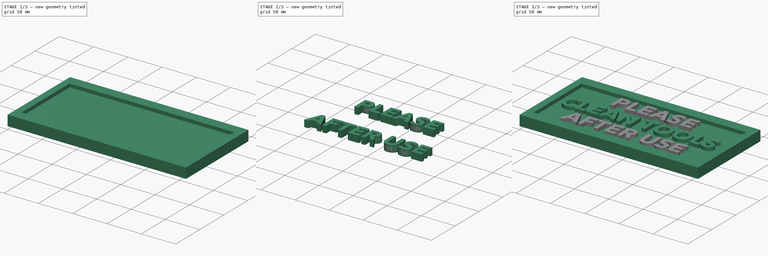
[diagram: build sequence overview — one tinted view per stage of 3, left to right]
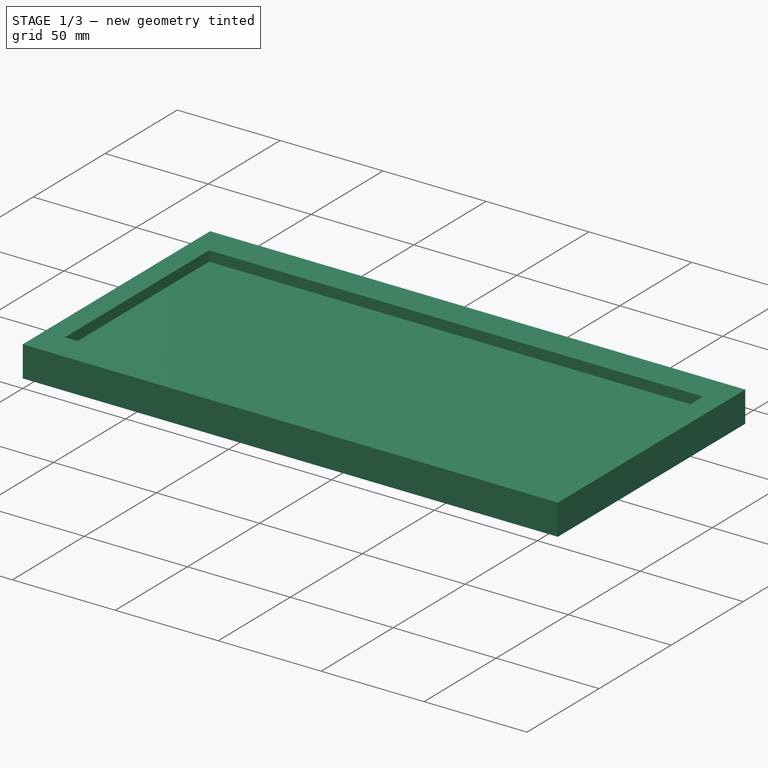
[diagram: stage 1 of 3 — iso view after this stage's code; geometry added in this stage tinted green]
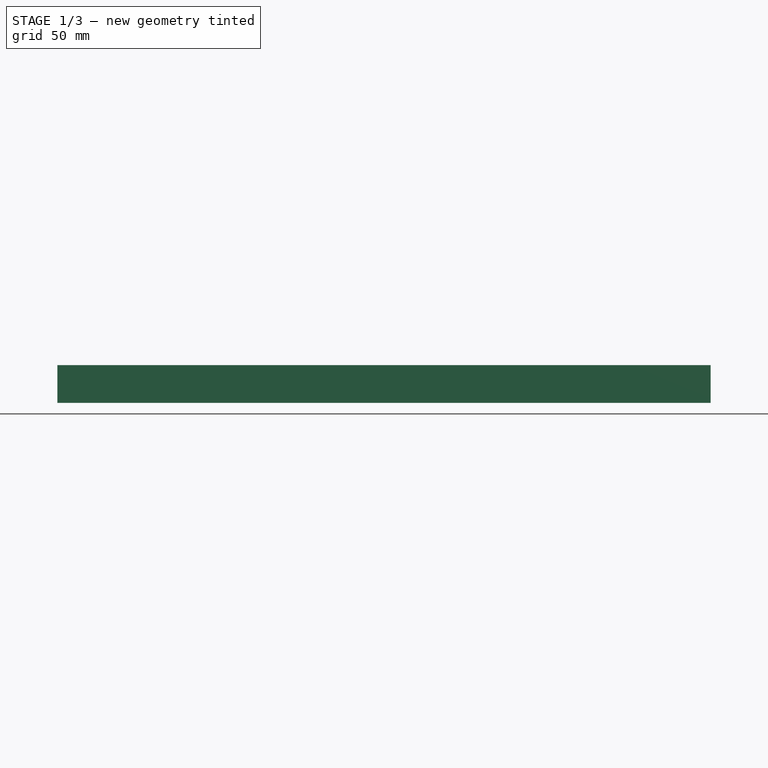
[diagram: stage 1 of 3 — front view after this stage's code; geometry added in this stage tinted green]
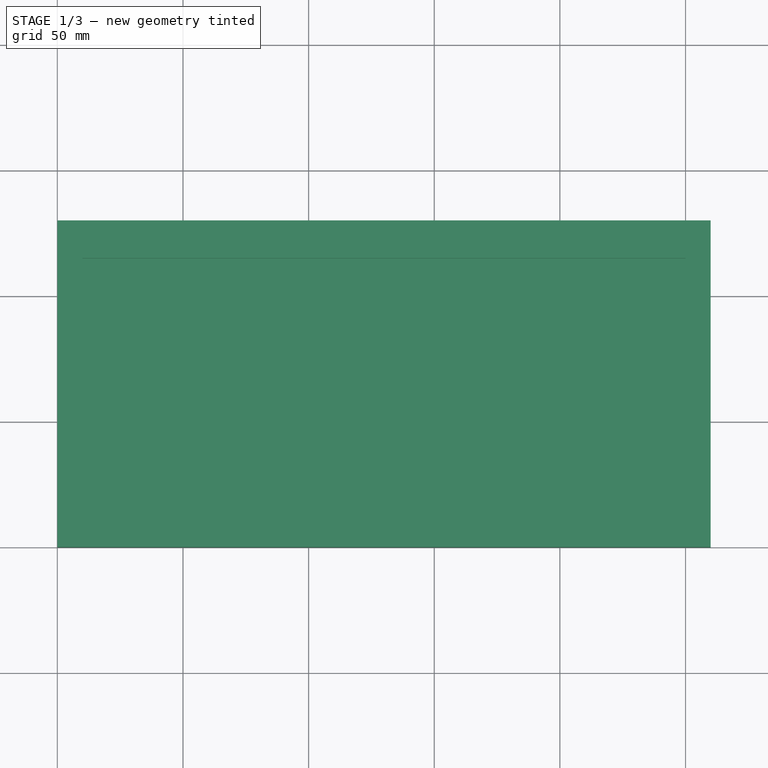
[diagram: stage 1 of 3 — top view after this stage's code; geometry added in this stage tinted green]
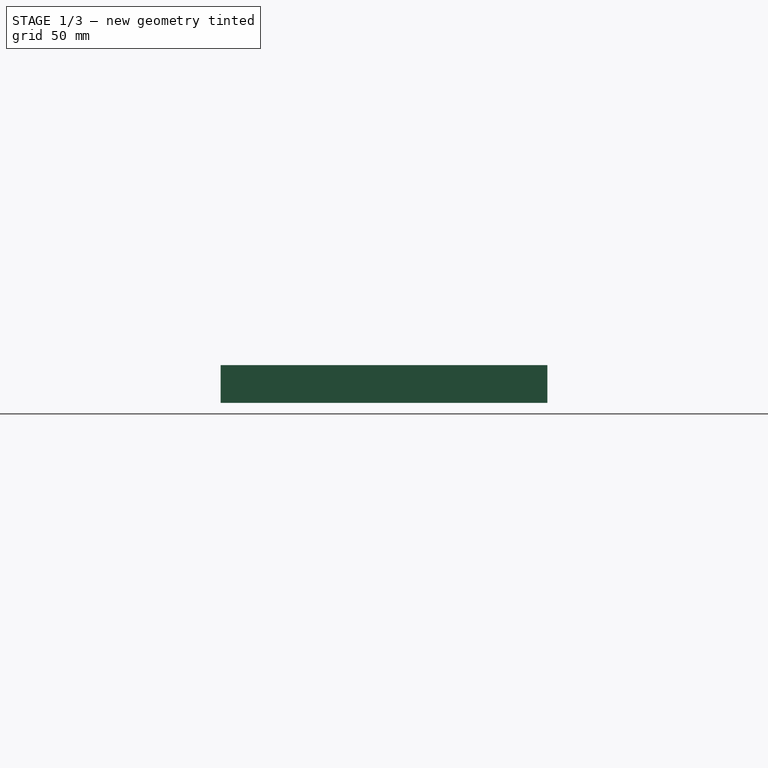
[diagram: stage 1 of 3 — right view after this stage's code; geometry added in this stage tinted green]
FCSTD DOCUMENT  (FreeCAD 0.22R36596 (Git))
Label: tools
License: All rights reserved
LicenseURL: http://en.wikipedia.org/wiki/All_rights_reserved
objects: Part::Part2DObjectPython×3, Part::Extrusion×3, Spreadsheet::Sheet×1, Sketcher::SketchObject×1, PartDesign::Pad×1, PartDesign::SubtractiveBox×1, PartDesign::Body×1, Part::MultiFuse×1
note: 13 computed .brp shape members not serialized (recipe doc carries the construction recipe); baked Part::Feature solids carry a one-line shape summary decoded from their .brp

FEATURE [Spreadsheet::Sheet] Spreadsheet  label="vars"
  cells = A1='length; B1(length)=260; A2='width; B2(width)=130; A3='height; B3(height)=15; A4='font size; B4(font_size)=23; A5='font height; B5(font_height)=5; A6='border; B6(border)=20; A7='border top; B7(border_top)=30
FEATURE [Sketcher::SketchObject] Sketch
  AttachmentSupport = -> [XY_Plane]
  FullyConstrained = true
  MapMode = 5
  expr: Constraints[10] = <<vars>>.width
  expr: Constraints[9] = <<vars>>.length
  sketch-geometry (4):
    g0: LineSegment StartX=0 StartY=0 StartZ=0 EndX=260 EndY=0 EndZ=0
    g1: LineSegment StartX=260 StartY=0 StartZ=0 EndX=260 EndY=130 EndZ=0
    g2: LineSegment StartX=260 StartY=130 StartZ=0 EndX=0 EndY=130 EndZ=0
    g3: LineSegment StartX=0 StartY=130 StartZ=0 EndX=0 EndY=0 EndZ=0
  constraints (11):
    c: Coincident(g0,g1)
    c: Coincident(g1,g2)
    c: Coincident(g2,g3)
    c: Coincident(g3,g0)
    c: Horizontal(g0)
    c: Horizontal(g2)
    c: Vertical(g1)
    c: Vertical(g3)
    c: Coincident(g0,g-1)
    c: DistanceX(g2,g2) = 260
    c: DistanceY(g1,g1) = 130
FEATURE [PartDesign::Pad] Pad
  Direction = (0,0,1)
  Length = 15
  Length2 = 10
  Profile = -> Sketch
  ReferenceAxis = -> Sketch [N_Axis]
  Suppressed = false
  Type = 0
  expr: Length = <<vars>>.height
FEATURE [PartDesign::SubtractiveBox] Box
  AttacherType = Attacher::AttachEngine3D
  AttachmentOffset = pos=(10,15,-5) rot=(0,0,1;0rad)
  AttachmentSupport = -> [Pad]
  BaseFeature = -> Pad
  Height = 5
  Length = 240
  MapMode = 5
  Placement = pos=(10,15,10) rot=(0,0,1;0rad)
  Suppressed = false
  Width = 100
  expr: .AttachmentOffset.Base.x = <<vars>>.border / 2
  expr: .AttachmentOffset.Base.y = <<vars>>.border_top / 2
  expr: .AttachmentOffset.Base.z = -<<vars>>.font_height
  expr: Height = <<vars>>.font_height
  expr: Length = <<vars>>.length - <<vars>>.border
  expr: Width = <<vars>>.width - <<vars>>.border_top
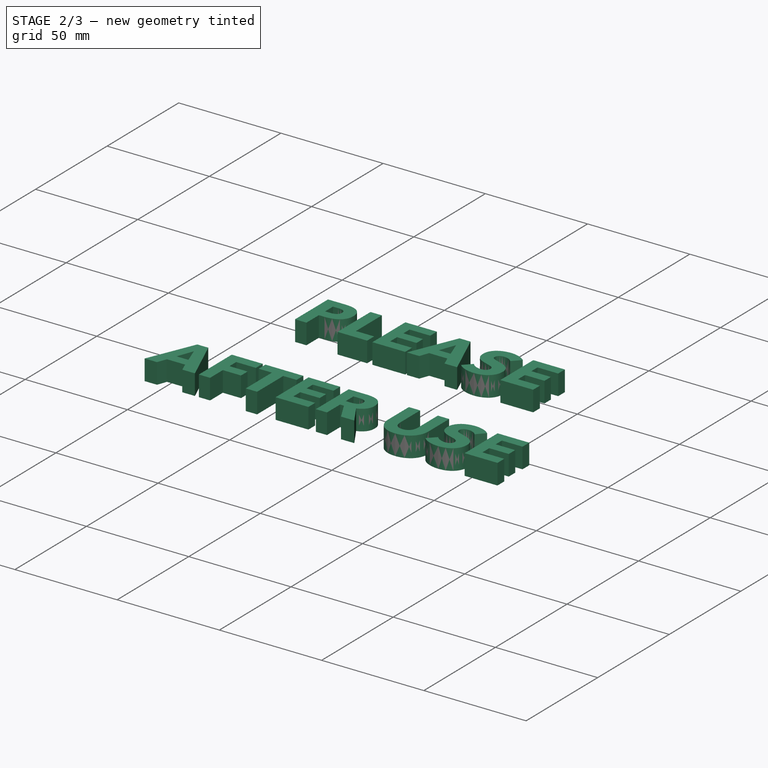
[diagram: stage 2 of 3 — iso view after this stage's code; geometry added in this stage tinted green]
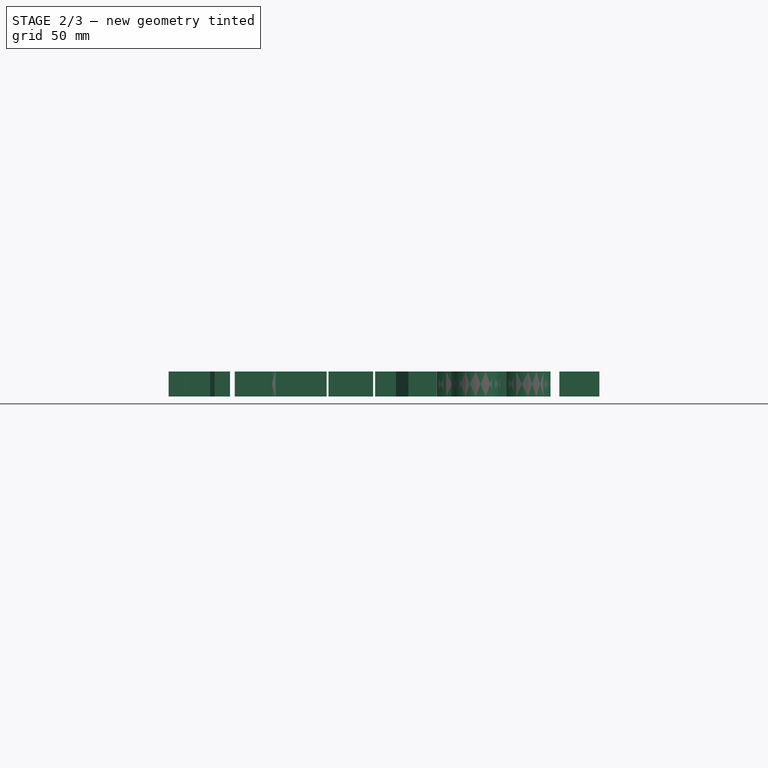
[diagram: stage 2 of 3 — front view after this stage's code; geometry added in this stage tinted green]
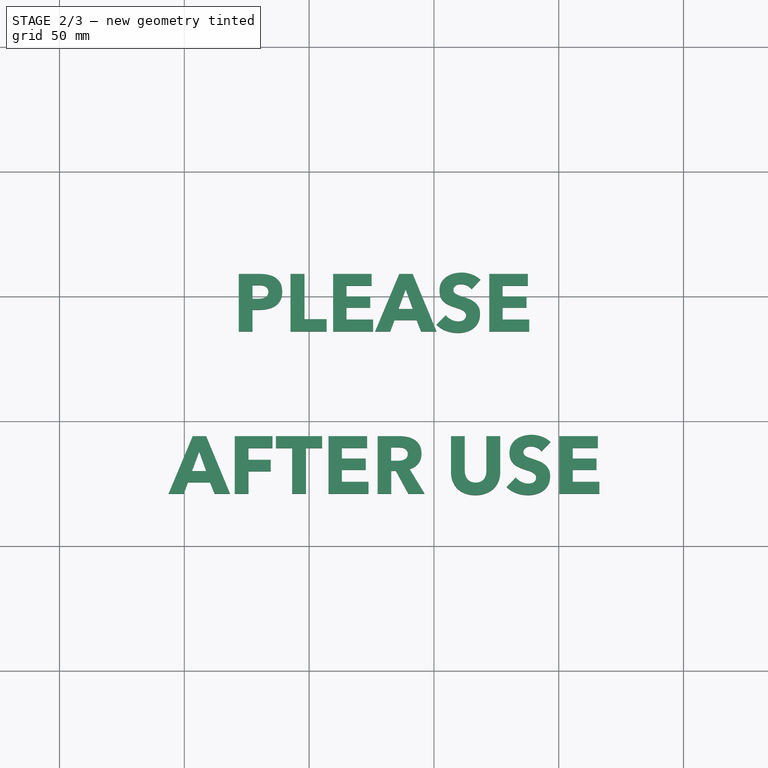
[diagram: stage 2 of 3 — top view after this stage's code; geometry added in this stage tinted green]
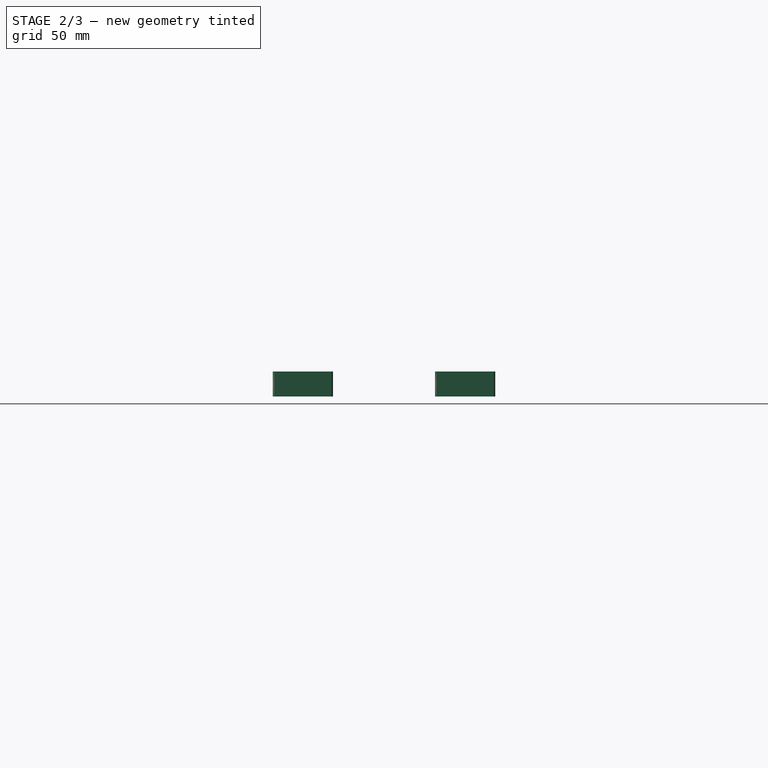
[diagram: stage 2 of 3 — right view after this stage's code; geometry added in this stage tinted green]
FEATURE [Part::Extrusion] Extrude001
  Base = -> ShapeString001
  Dir = (0,0,1)
  DirMode = 2
  FaceMakerClass = Part::FaceMakerBullseye
  LengthFwd = 10
  LengthRev = 0
  Solid = true
  Symmetric = true
FEATURE [Part::Extrusion] Extrude002
  Base = -> ShapeString002
  Dir = (0,0,1)
  DirMode = 2
  FaceMakerClass = Part::FaceMakerBullseye
  LengthFwd = 10
  LengthRev = 0
  Solid = true
  Symmetric = true
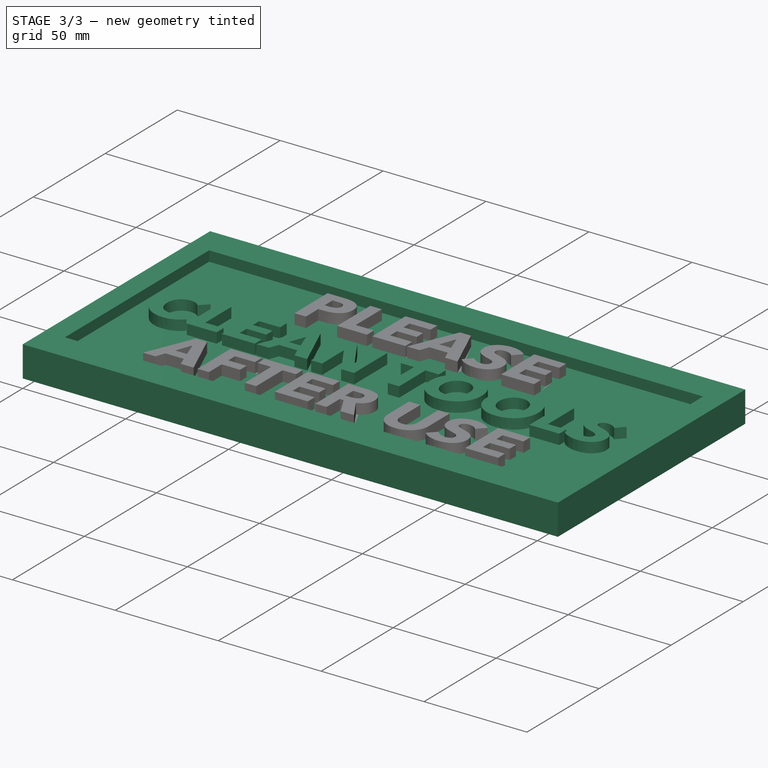
[diagram: stage 3 of 3 — iso view after this stage's code; geometry added in this stage tinted green]
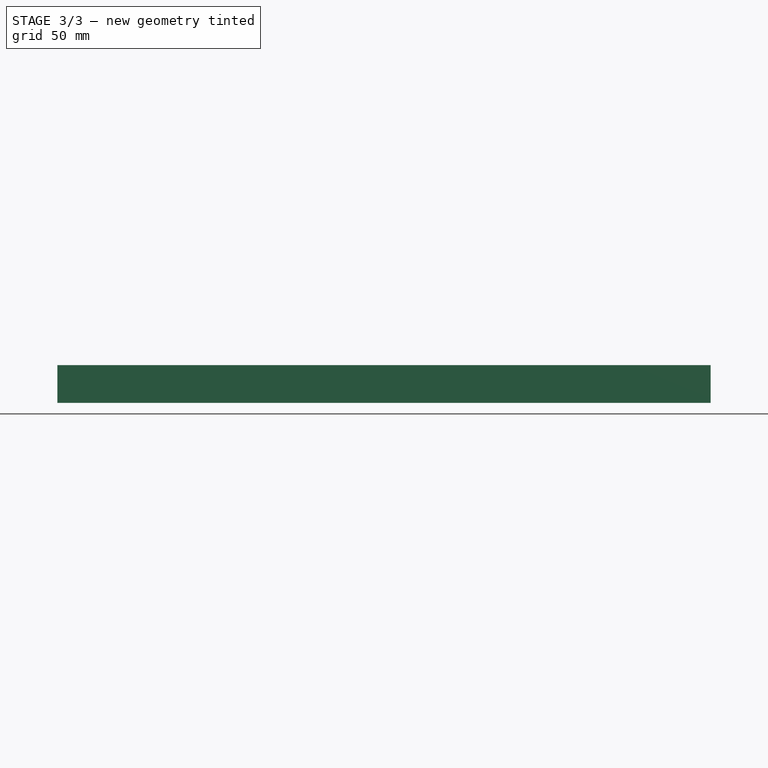
[diagram: stage 3 of 3 — front view after this stage's code; geometry added in this stage tinted green]
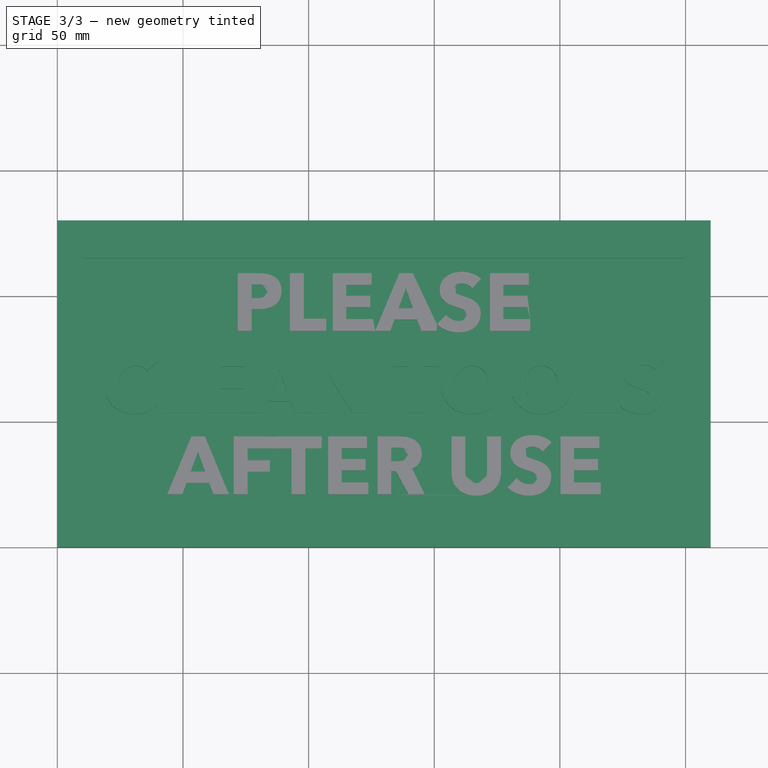
[diagram: stage 3 of 3 — top view after this stage's code; geometry added in this stage tinted green]
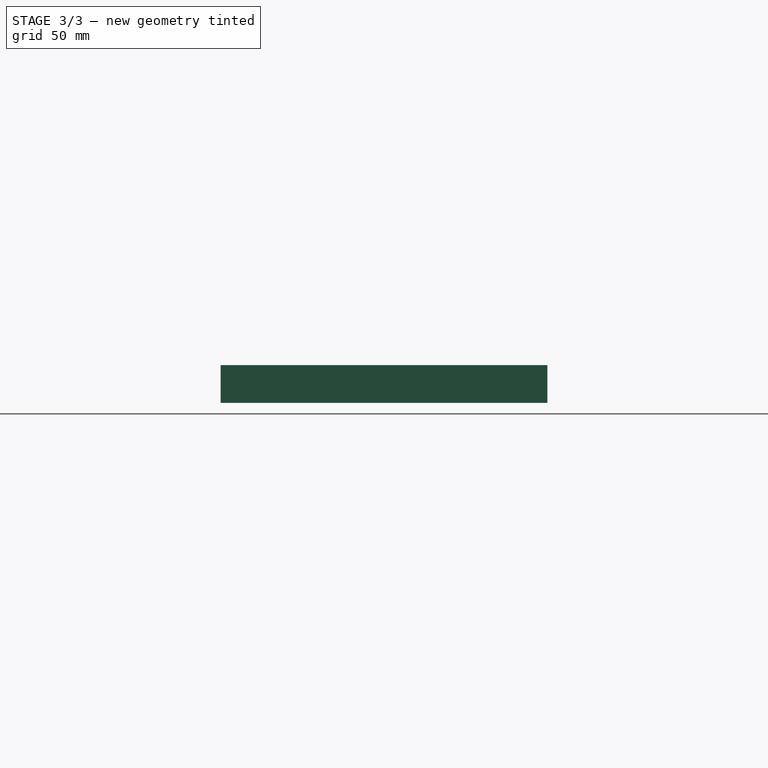
[diagram: stage 3 of 3 — right view after this stage's code; geometry added in this stage tinted green]
FEATURE [PartDesign::Body] Body
  Group = -> [Sketch,Pad,Box]
  Origin = -> Origin
  Tip = -> Box
FEATURE [Part::Part2DObjectPython] ShapeString  label="Line 2"  # Draft 2D object (typed FeaturePython)
  FontFile = /System/Library/Fonts/Avenir Next.ttc
  Fuse = false
  Justification = 4
  JustificationReference = 0
  KeepLeftMargin = false
  MakeFace = true
  ObliqueAngle = 0
  Placement = pos=(130,65,10) rot=(0,0,1;0rad)
  ScaleToSize = true
  Size = 23
  String = CLEAN TOOLS
  Tracking = 0
  expr: .Placement.Base.x = <<vars>>.length / 2
  expr: .Placement.Base.y = <<vars>>.width * 0.5
  expr: .Placement.Base.z = Pad.Length - Box.Height
  expr: Size = <<vars>>.font_size
FEATURE [Part::Part2DObjectPython] ShapeString001  label="Line 3"  # Draft 2D object (typed FeaturePython)
  FontFile = /System/Library/Fonts/Avenir Next.ttc
  Fuse = false
  Justification = 4
  JustificationReference = 0
  KeepLeftMargin = false
  MakeFace = true
  ObliqueAngle = 0
  Placement = pos=(130,32.5,10) rot=(0,0,1;0rad)
  ScaleToSize = true
  Size = 23
  String = AFTER USE
  Tracking = 0
  expr: .Placement.Base.x = <<vars>>.length / 2
  expr: .Placement.Base.y = <<vars>>.width * 0.25
  expr: .Placement.Base.z = Pad.Length - Box.Height
  expr: Size = <<vars>>.font_size
FEATURE [Part::Part2DObjectPython] ShapeString002  label="Line 1"  # Draft 2D object (typed FeaturePython)
  FontFile = /System/Library/Fonts/Avenir Next.ttc
  Fuse = false
  Justification = 4
  JustificationReference = 0
  KeepLeftMargin = false
  MakeFace = true
  ObliqueAngle = 0
  Placement = pos=(130,97.5,10) rot=(0,0,1;0rad)
  ScaleToSize = true
  Size = 23
  String = PLEASE
  Tracking = 0
  expr: .Placement.Base.x = <<vars>>.length / 2
  expr: .Placement.Base.y = <<vars>>.width * 0.75
  expr: .Placement.Base.z = Pad.Length - Box.Height
  expr: Size = <<vars>>.font_size
FEATURE [Part::Extrusion] Extrude
  Base = -> ShapeString
  Dir = (0,0,1)
  DirMode = 2
  FaceMakerClass = Part::FaceMakerBullseye
  LengthFwd = 10
  LengthRev = 0
  Solid = true
  Symmetric = true
FEATURE [Part::MultiFuse] Fusion
  Shapes = -> [Body,Extrude,Extrude001,Extrude002]
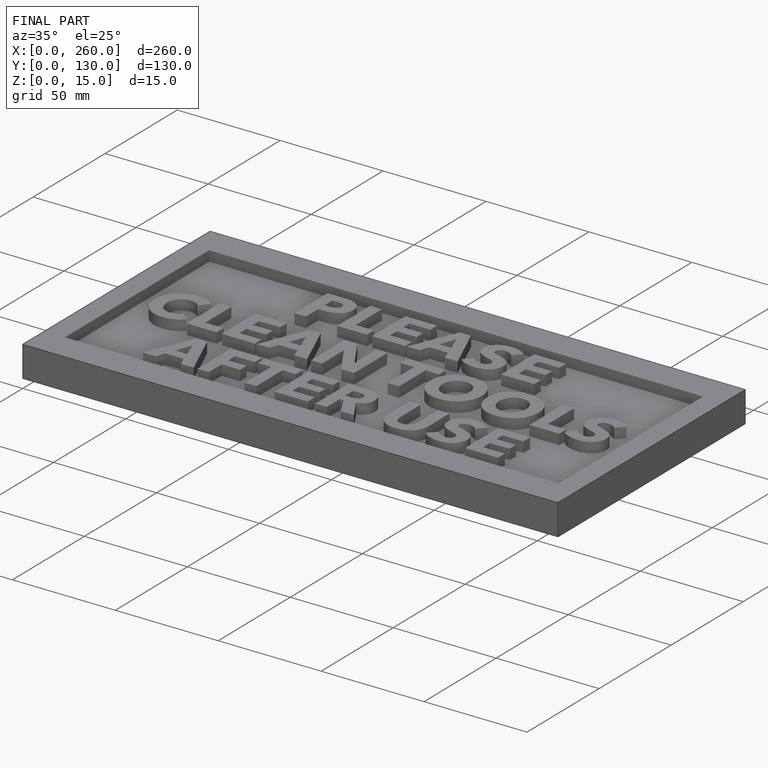
[diagram: finished part — iso view with bounding-box wireframe]
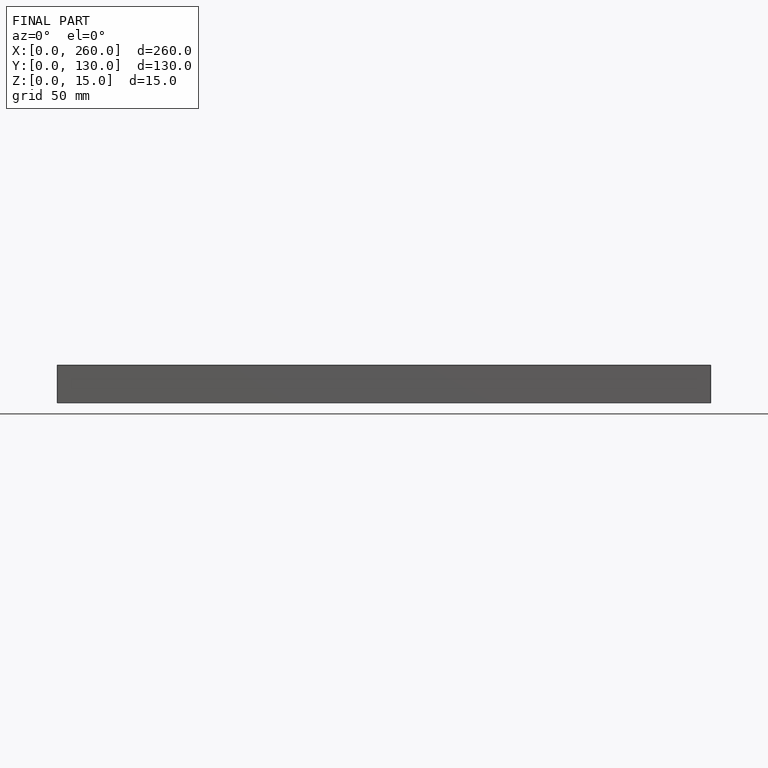
[diagram: finished part — front view with bounding-box wireframe]
